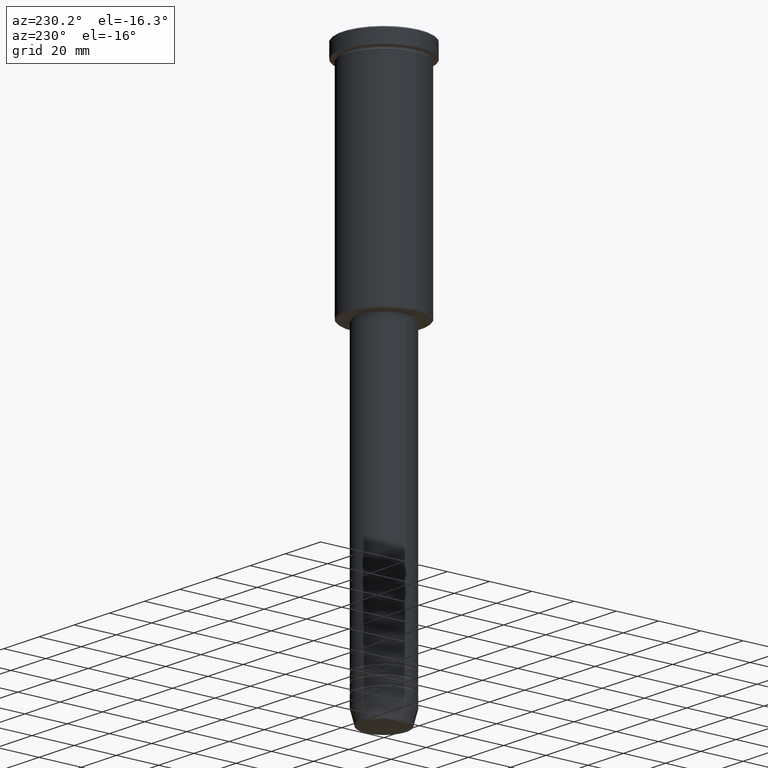
[diagram: clean part render]
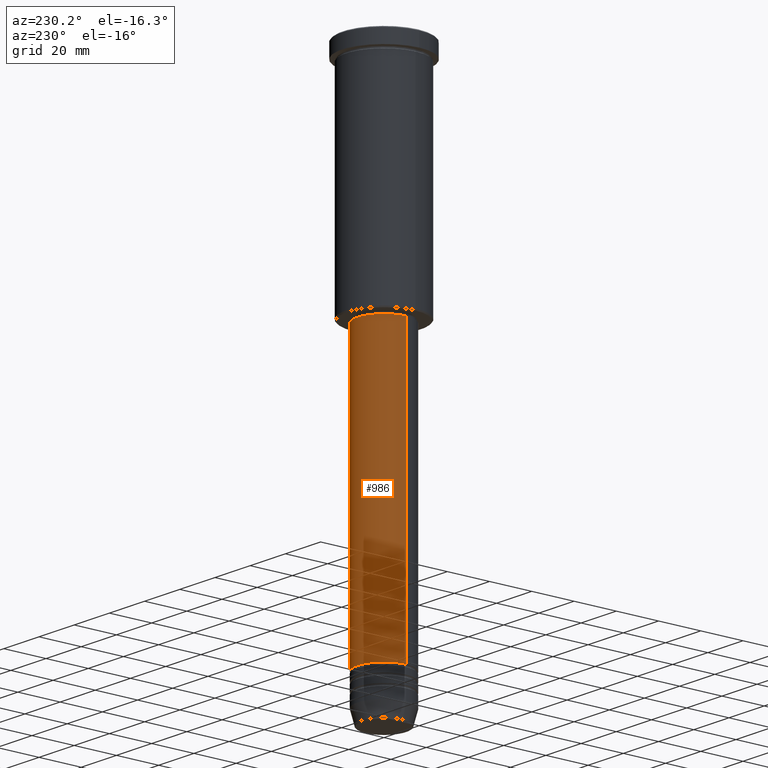
[diagram: same view with one face highlighted and labeled with its STEP entity id]
A machine part, auxiliary view. The second image highlights one B-rep face of the part: STEP entity #986.
In plain terms, the highlighted cylindrical surface (edge-blend (fillet) strip) has radius 12.5 mm, axis along (-0, -0, 1).
Its self-contained STEP definition (entity closure, byte-faithful):
#14 = AXIS2_PLACEMENT_3D ( 'NONE', #615, #85, #983 ) ;
#33 = DIRECTION ( 'NONE',  ( -0.000000000000000000, -0.000000000000000000, 1.000000000000000000 ) ) ;
#39 = VERTEX_POINT ( 'NONE', #873 ) ;
#85 = DIRECTION ( 'NONE',  ( -0.000000000000000000, -0.000000000000000000, 1.000000000000000000 ) ) ;
#113 = DIRECTION ( 'NONE',  ( -0.000000000000000000, -0.000000000000000000, 1.000000000000000000 ) ) ;
#165 = DIRECTION ( 'NONE',  ( -0.000000000000000000, -0.000000000000000000, 1.000000000000000000 ) ) ;
#173 = ORIENTED_EDGE ( 'NONE', *, *, #660, .T. ) ;
#216 = CARTESIAN_POINT ( 'NONE',  ( -12.50000000000000000, 1.530808498934191521E-15, 0.000000000000000000 ) ) ;
#228 = VECTOR ( 'NONE', #33, 1000.000000000000000 ) ;
#239 = ORIENTED_EDGE ( 'NONE', *, *, #782, .F. ) ;
#277 = LINE ( 'NONE', #216, #228 ) ;
#324 = AXIS2_PLACEMENT_3D ( 'NONE', #1020, #923, #1126 ) ;
#444 = FACE_OUTER_BOUND ( 'NONE', #555, .T. ) ;
#466 = VECTOR ( 'NONE', #113, 1000.000000000000000 ) ;
#555 = EDGE_LOOP ( 'NONE', ( #173, #778, #1098, #239 ) ) ;
#615 = CARTESIAN_POINT ( 'NONE',  ( 0.000000000000000000, 0.000000000000000000, -239.0000000000000000 ) ) ;
#660 = EDGE_CURVE ( 'NONE', #39, #885, #737, .T. ) ;
#680 = EDGE_CURVE ( 'NONE', #885, #1093, #277, .T. ) ;
#726 = DIRECTION ( 'NONE',  ( 1.000000000000000000, 0.000000000000000000, 0.000000000000000000 ) ) ;
#737 = CIRCLE ( 'NONE', #14, 12.50000000000000000 ) ;
#778 = ORIENTED_EDGE ( 'NONE', *, *, #680, .T. ) ;
#780 = EDGE_CURVE ( 'NONE', #848, #1093, #833, .T. ) ;
#782 = EDGE_CURVE ( 'NONE', #39, #848, #831, .T. ) ;
#802 = CARTESIAN_POINT ( 'NONE',  ( 0.000000000000000000, 0.000000000000000000, 0.000000000000000000 ) ) ;
#831 = LINE ( 'NONE', #929, #466 ) ;
#833 = CIRCLE ( 'NONE', #324, 12.50000000000000000 ) ;
#848 = VERTEX_POINT ( 'NONE', #882 ) ;
#872 = AXIS2_PLACEMENT_3D ( 'NONE', #802, #165, #726 ) ;
#873 = CARTESIAN_POINT ( 'NONE',  ( 12.50000000000000000, 0.000000000000000000, -239.0000000000000000 ) ) ;
#882 = CARTESIAN_POINT ( 'NONE',  ( 12.50000000000000000, 0.000000000000000000, -107.0000000000000142 ) ) ;
#885 = VERTEX_POINT ( 'NONE', #953 ) ;
#923 = DIRECTION ( 'NONE',  ( -0.000000000000000000, -0.000000000000000000, 1.000000000000000000 ) ) ;
#929 = CARTESIAN_POINT ( 'NONE',  ( 12.50000000000000000, 0.000000000000000000, 0.000000000000000000 ) ) ;
#953 = CARTESIAN_POINT ( 'NONE',  ( -12.50000000000000000, 1.530808498934191521E-15, -239.0000000000000000 ) ) ;
#982 = CYLINDRICAL_SURFACE ( 'NONE', #872, 12.50000000000000000 ) ;
#983 = DIRECTION ( 'NONE',  ( 1.000000000000000000, 0.000000000000000000, 0.000000000000000000 ) ) ;
#986 = ADVANCED_FACE ( 'NONE', ( #444 ), #982, .T. ) ;
#1020 = CARTESIAN_POINT ( 'NONE',  ( 0.000000000000000000, 0.000000000000000000, -107.0000000000000142 ) ) ;
#1024 = CARTESIAN_POINT ( 'NONE',  ( -12.50000000000000000, 1.530808498934191521E-15, -107.0000000000000142 ) ) ;
#1093 = VERTEX_POINT ( 'NONE', #1024 ) ;
#1098 = ORIENTED_EDGE ( 'NONE', *, *, #780, .F. ) ;
#1126 = DIRECTION ( 'NONE',  ( 1.000000000000000000, 0.000000000000000000, 0.000000000000000000 ) ) ;